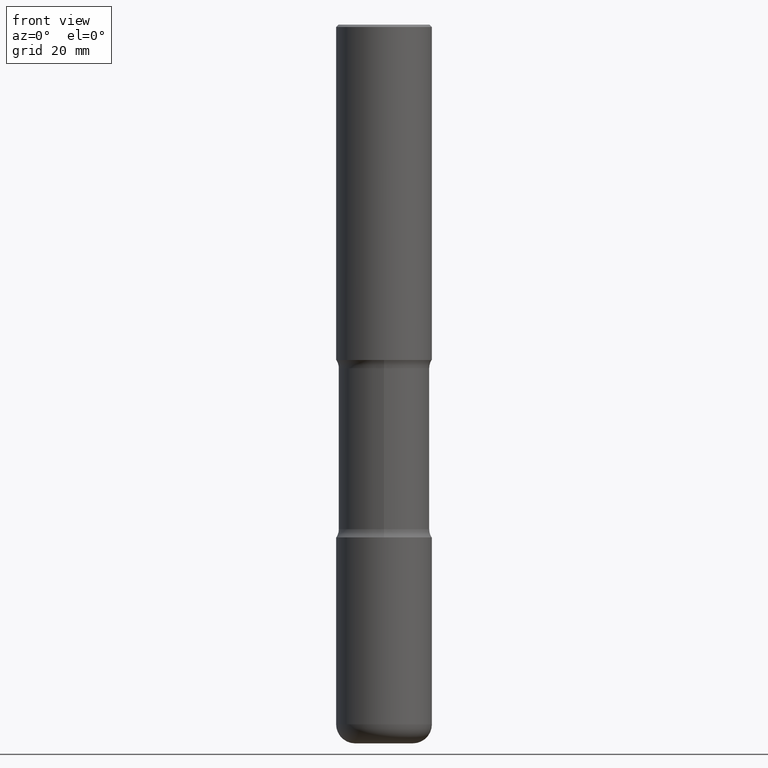
[diagram: clean part render]
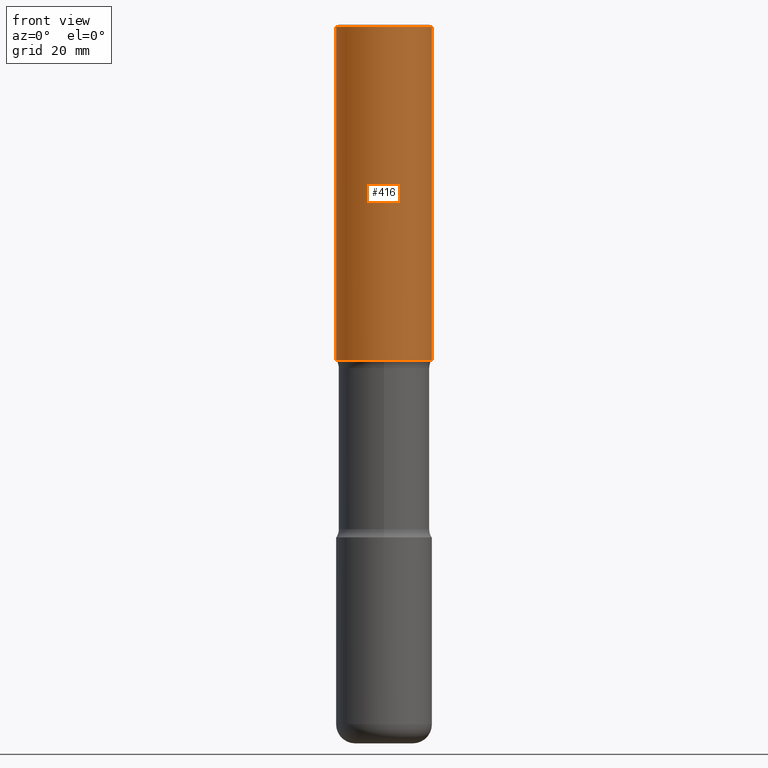
[diagram: same view with one face highlighted and labeled with its STEP entity id]
A machine part, front view. The second image highlights one B-rep face of the part: STEP entity #416.
In plain terms, the highlighted cylindrical surface (partial cylindrical patch) has radius 10 mm, axis along (-0, 0, 1).
Its self-contained STEP definition (entity closure, byte-faithful):
#6 = ORIENTED_EDGE ( 'NONE', *, *, #22, .F. ) ;
#16 = VERTEX_POINT ( 'NONE', #71 ) ;
#19 = DIRECTION ( 'NONE',  ( -2.445468806185136597E-29, 3.491481338843145583E-15, 1.000000000000000000 ) ) ;
#22 = EDGE_CURVE ( 'NONE', #16, #292, #483, .T. ) ;
#35 = DIRECTION ( 'NONE',  ( -2.445468806185136877E-29, 3.491481338843145188E-15, 1.000000000000000000 ) ) ;
#62 = ORIENTED_EDGE ( 'NONE', *, *, #182, .F. ) ;
#71 = CARTESIAN_POINT ( 'NONE',  ( -0.3936999999999999389, 2.679362779428219524E-15, -0.02000000000000010103 ) ) ;
#99 = CYLINDRICAL_SURFACE ( 'NONE', #171, 0.3937000000000001054 ) ;
#118 = ORIENTED_EDGE ( 'NONE', *, *, #341, .T. ) ;
#132 = CARTESIAN_POINT ( 'NONE',  ( 6.739467482965614869E-29, -9.622173421717819657E-15, -2.755899999999998240 ) ) ;
#135 = DIRECTION ( 'NONE',  ( -2.445468806185136877E-29, 3.491481338843145188E-15, 1.000000000000000000 ) ) ;
#151 = ORIENTED_EDGE ( 'NONE', *, *, #294, .T. ) ;
#171 = AXIS2_PLACEMENT_3D ( 'NONE', #438, #254, #424 ) ;
#182 = EDGE_CURVE ( 'NONE', #241, #16, #298, .T. ) ;
#195 = VECTOR ( 'NONE', #135, 39.37007874015748143 ) ;
#222 = AXIS2_PLACEMENT_3D ( 'NONE', #132, #265, #381 ) ;
#234 = CARTESIAN_POINT ( 'NONE',  ( -0.3937000000000002720, -2.048594773559823141E-15, -2.755899999999998240 ) ) ;
#241 = VERTEX_POINT ( 'NONE', #234 ) ;
#254 = DIRECTION ( 'NONE',  ( -2.445468806185136597E-29, 3.491481338843145583E-15, 1.000000000000000000 ) ) ;
#265 = DIRECTION ( 'NONE',  ( -2.445468806185136597E-29, 3.491481338843145583E-15, 1.000000000000000000 ) ) ;
#292 = VERTEX_POINT ( 'NONE', #388 ) ;
#294 = EDGE_CURVE ( 'NONE', #241, #544, #466, .T. ) ;
#298 = LINE ( 'NONE', #335, #496 ) ;
#301 = CARTESIAN_POINT ( 'NONE',  ( 0.3937000000000002164, -1.237136582792290287E-14, -2.755899999999998240 ) ) ;
#315 = LINE ( 'NONE', #554, #195 ) ;
#335 = CARTESIAN_POINT ( 'NONE',  ( -0.3937000000000001054, 2.797406750687515181E-15, -1.936584745033357016E-29 ) ) ;
#341 = EDGE_CURVE ( 'NONE', #544, #292, #315, .T. ) ;
#381 = DIRECTION ( 'NONE',  ( 1.000000000000000000, -6.982962677686265133E-15, 0.000000000000000000 ) ) ;
#383 = AXIS2_PLACEMENT_3D ( 'NONE', #443, #19, #408 ) ;
#388 = CARTESIAN_POINT ( 'NONE',  ( 0.3936999999999999389, -2.770807688499514945E-15, -0.02000000000000010103 ) ) ;
#408 = DIRECTION ( 'NONE',  ( 1.000000000000000000, -6.982962677686266711E-15, 0.000000000000000000 ) ) ;
#416 = ADVANCED_FACE ( 'NONE', ( #470 ), #99, .T. ) ;
#424 = DIRECTION ( 'NONE',  ( 1.000000000000000000, -6.982962677686266711E-15, 4.876176775795935793E-29 ) ) ;
#438 = CARTESIAN_POINT ( 'NONE',  ( 0.000000000000000000, 0.000000000000000000, 0.000000000000000000 ) ) ;
#443 = CARTESIAN_POINT ( 'NONE',  ( 4.890937612370298557E-31, -6.982962677686327354E-17, -0.02000000000000010103 ) ) ;
#466 = CIRCLE ( 'NONE', #222, 0.3937000000000002164 ) ;
#470 = FACE_OUTER_BOUND ( 'NONE', #478, .T. ) ;
#478 = EDGE_LOOP ( 'NONE', ( #62, #151, #118, #6 ) ) ;
#483 = CIRCLE ( 'NONE', #383, 0.3936999999999999389 ) ;
#496 = VECTOR ( 'NONE', #35, 39.37007874015748143 ) ;
#544 = VERTEX_POINT ( 'NONE', #301 ) ;
#554 = CARTESIAN_POINT ( 'NONE',  ( 0.3937000000000001054, -2.749192406205084005E-15, 1.919750796630860452E-29 ) ) ;